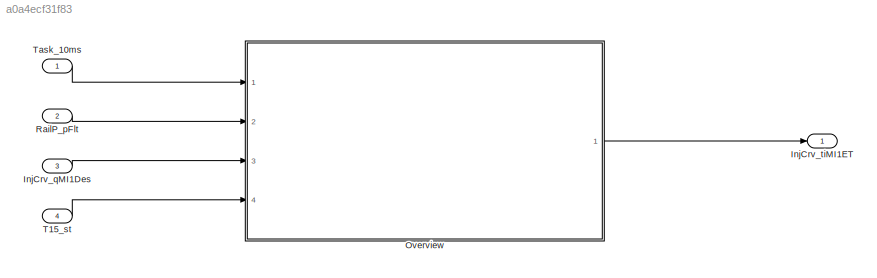
MODEL slx_a0a4ecf31f83
KIND model
CONFIG AbsTol = auto
CONFIG EnableMultiTasking = off
CONFIG FixedStep = auto
CONFIG MaxStep = auto
CONFIG MinStep = auto
CONFIG RelTol = 1e-3
CONFIG SampleTimeConstraint = Unconstrained
CONFIG Solver = VariableStepAuto
CONFIG SolverName = VariableStepAuto
CONFIG StartTime = 0.0
CONFIG StopTime = 10.0
BLOCK [Inport] InjCrv_qMI1Des
  IconDisplay = Port number
  Port = 3
BLOCK [Outport] InjCrv_tiMI1ET
  IconDisplay = Port number
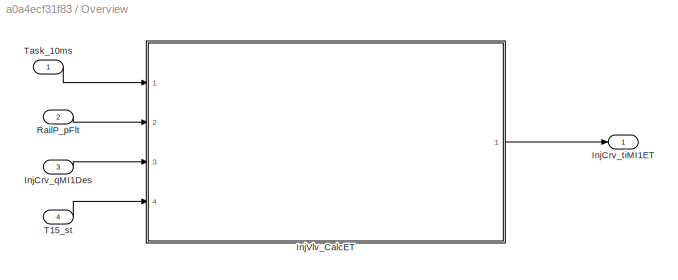
BLOCK [SubSystem] Overview
  Ports = [4, 1]
  RequestExecContextInheritance = off
BLOCK [Inport] Overview/InjCrv_qMI1Des
  IconDisplay = Port number
  Port = 3
BLOCK [Outport] Overview/InjCrv_tiMI1ET
  IconDisplay = Port number
BLOCK [ModelReference] Overview/InjVlv_CalcET
  ModelNameDialog = InjVlv_CalcET
  ModelReferenceVersion = 1.59
  Ports = [4, 1]
BLOCK [Inport] Overview/RailP_pFlt
  IconDisplay = Port number
  Port = 2
BLOCK [Inport] Overview/T15_st
  IconDisplay = Port number
  Port = 4
BLOCK [Inport] Overview/Task_10ms
  IconDisplay = Port number
BLOCK [Inport] RailP_pFlt
  IconDisplay = Port number
  Port = 2
BLOCK [Inport] T15_st
  IconDisplay = Port number
  Port = 4
BLOCK [Inport] Task_10ms
  IconDisplay = Port number
  OutputFunctionCall = on
LINE InjCrv_qMI1Des:1 -> Overview:3
LINE Overview/InjCrv_qMI1Des:1 -> Overview/InjVlv_CalcET:3
LINE Overview/InjVlv_CalcET:1 -> Overview/InjCrv_tiMI1ET:1
LINE Overview/RailP_pFlt:1 -> Overview/InjVlv_CalcET:2
LINE Overview/T15_st:1 -> Overview/InjVlv_CalcET:4
LINE Overview/Task_10ms:1 -> Overview/InjVlv_CalcET:1
LINE Overview:1 -> InjCrv_tiMI1ET:1
LINE RailP_pFlt:1 -> Overview:2
LINE T15_st:1 -> Overview:4
LINE Task_10ms:1 -> Overview:1
